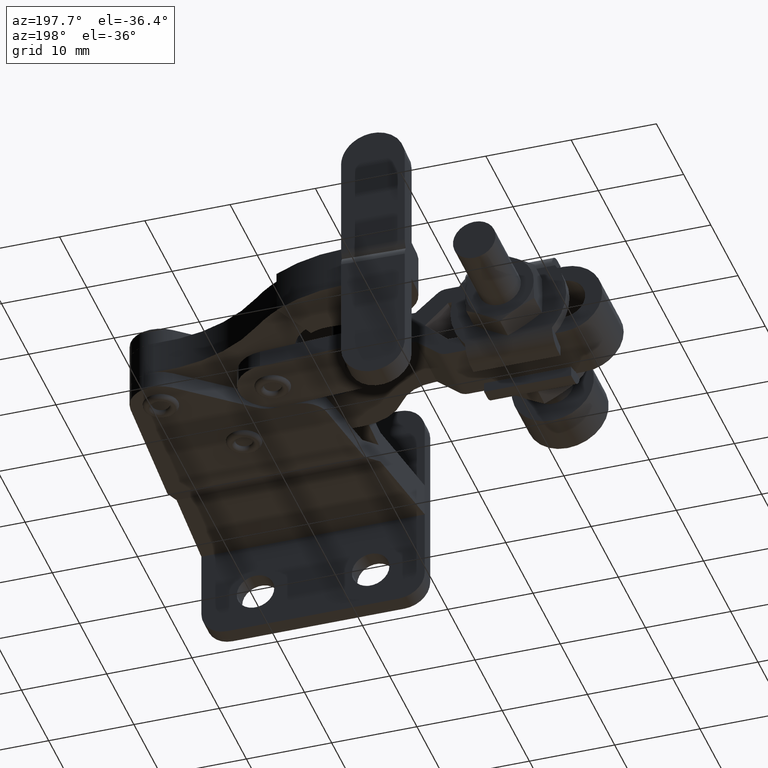
[diagram: clean part render]
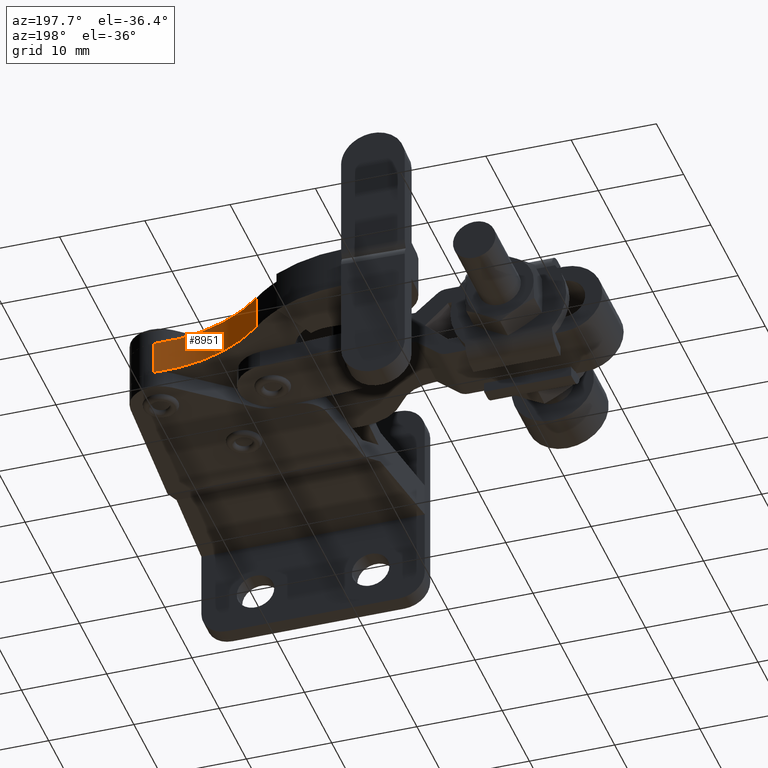
[diagram: same view with one face highlighted and labeled with its STEP entity id]
A machine part, auxiliary view. The second image highlights one B-rep face of the part: STEP entity #8951.
In plain terms, the highlighted cylindrical surface (partial cylindrical patch) has radius 18 mm, axis along (0, 0, -1).
Its self-contained STEP definition (entity closure, byte-faithful):
#163 = DIRECTION ( 'NONE',  ( 0.0000000000000000000, 0.0000000000000000000, -1.000000000000000000 ) ) ;
#194 = CARTESIAN_POINT ( 'NONE',  ( 24.22607102327114200, 62.18976060308725800, 13.14979700761274700 ) ) ;
#523 = CARTESIAN_POINT ( 'NONE',  ( 10.69572340548177400, 66.86049286402983700, 13.14979700761274700 ) ) ;
#571 = EDGE_CURVE ( 'NONE', #1902, #5106, #3972, .T. ) ;
#607 = FACE_OUTER_BOUND ( 'NONE', #1660, .T. ) ;
#954 = AXIS2_PLACEMENT_3D ( 'NONE', #2593, #1084, #6442 ) ;
#1084 = DIRECTION ( 'NONE',  ( 0.0000000000000000000, -0.0000000000000000000, -1.000000000000000000 ) ) ;
#1502 = CARTESIAN_POINT ( 'NONE',  ( 22.85021559781950300, 80.13710084748717600, 13.14979700761274700 ) ) ;
#1660 = EDGE_LOOP ( 'NONE', ( #4270, #6208, #3227, #8329 ) ) ;
#1902 = VERTEX_POINT ( 'NONE', #523 ) ;
#2259 = DIRECTION ( 'NONE',  ( 0.9999657547427884800, 0.008275828761243742400, 0.0000000000000000000 ) ) ;
#2593 = CARTESIAN_POINT ( 'NONE',  ( 22.85021559781950300, 80.13710084748717600, 13.14979700761274700 ) ) ;
#3111 = CARTESIAN_POINT ( 'NONE',  ( 24.22607102327114200, 62.18976060308725800, 13.14979700761274700 ) ) ;
#3225 = CIRCLE ( 'NONE', #9608, 18.00000000000004600 ) ;
#3227 = ORIENTED_EDGE ( 'NONE', *, *, #571, .F. ) ;
#3302 = AXIS2_PLACEMENT_3D ( 'NONE', #1502, #6822, #2259 ) ;
#3571 = CIRCLE ( 'NONE', #3302, 18.00000000000004600 ) ;
#3972 = LINE ( 'NONE', #7755, #9827 ) ;
#3986 = VERTEX_POINT ( 'NONE', #7554 ) ;
#4270 = ORIENTED_EDGE ( 'NONE', *, *, #4502, .T. ) ;
#4502 = EDGE_CURVE ( 'NONE', #4605, #3986, #5496, .T. ) ;
#4605 = VERTEX_POINT ( 'NONE', #194 ) ;
#4718 = CARTESIAN_POINT ( 'NONE',  ( 22.85021559781950300, 80.13710084748717600, 9.149797007612747300 ) ) ;
#5106 = VERTEX_POINT ( 'NONE', #9472 ) ;
#5496 = LINE ( 'NONE', #3111, #9331 ) ;
#5500 = DIRECTION ( 'NONE',  ( 0.9999657547427884800, 0.008275828761243742400, 0.0000000000000000000 ) ) ;
#6208 = ORIENTED_EDGE ( 'NONE', *, *, #8241, .T. ) ;
#6442 = DIRECTION ( 'NONE',  ( -0.9999657547427884800, -0.008275828761243744100, 0.0000000000000000000 ) ) ;
#6463 = CYLINDRICAL_SURFACE ( 'NONE', #954, 18.00000000000004300 ) ;
#6822 = DIRECTION ( 'NONE',  ( 0.0000000000000000000, -0.0000000000000000000, -1.000000000000000000 ) ) ;
#6999 = DIRECTION ( 'NONE',  ( 0.0000000000000000000, -0.0000000000000000000, -1.000000000000000000 ) ) ;
#7554 = CARTESIAN_POINT ( 'NONE',  ( 24.22607102327114200, 62.18976060308725800, 9.149797007612747300 ) ) ;
#7755 = CARTESIAN_POINT ( 'NONE',  ( 10.69572340548177400, 66.86049286402983700, 13.14979700761274700 ) ) ;
#8241 = EDGE_CURVE ( 'NONE', #3986, #5106, #3225, .T. ) ;
#8329 = ORIENTED_EDGE ( 'NONE', *, *, #9269, .F. ) ;
#8942 = DIRECTION ( 'NONE',  ( 0.0000000000000000000, -0.0000000000000000000, -1.000000000000000000 ) ) ;
#8951 = ADVANCED_FACE ( 'NONE', ( #607 ), #6463, .F. ) ;
#9269 = EDGE_CURVE ( 'NONE', #4605, #1902, #3571, .T. ) ;
#9331 = VECTOR ( 'NONE', #6999, 1000.000000000000000 ) ;
#9472 = CARTESIAN_POINT ( 'NONE',  ( 10.69572340548177400, 66.86049286402983700, 9.149797007612747300 ) ) ;
#9608 = AXIS2_PLACEMENT_3D ( 'NONE', #4718, #163, #5500 ) ;
#9827 = VECTOR ( 'NONE', #8942, 1000.000000000000000 ) ;